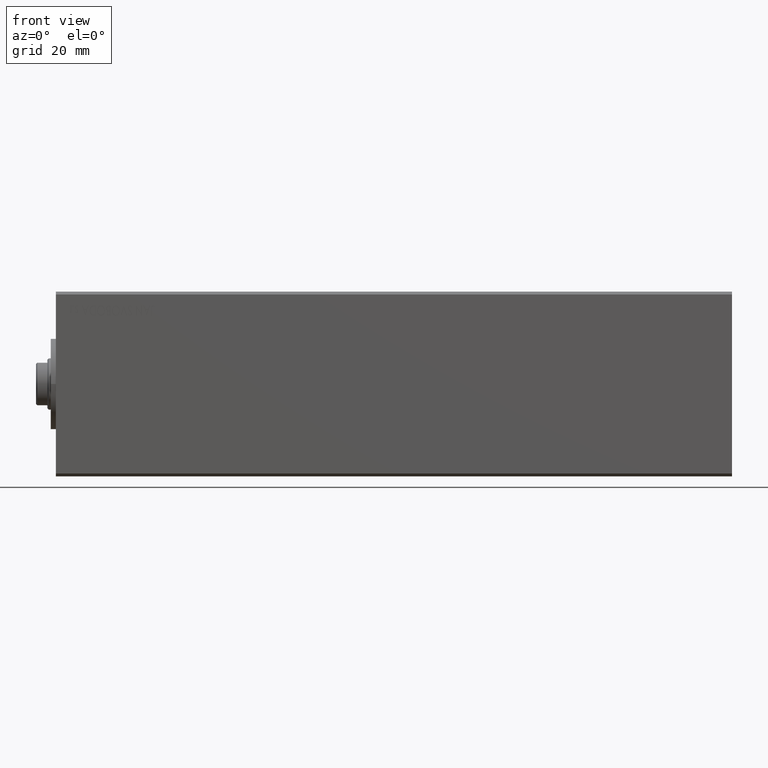
[diagram: clean part render]
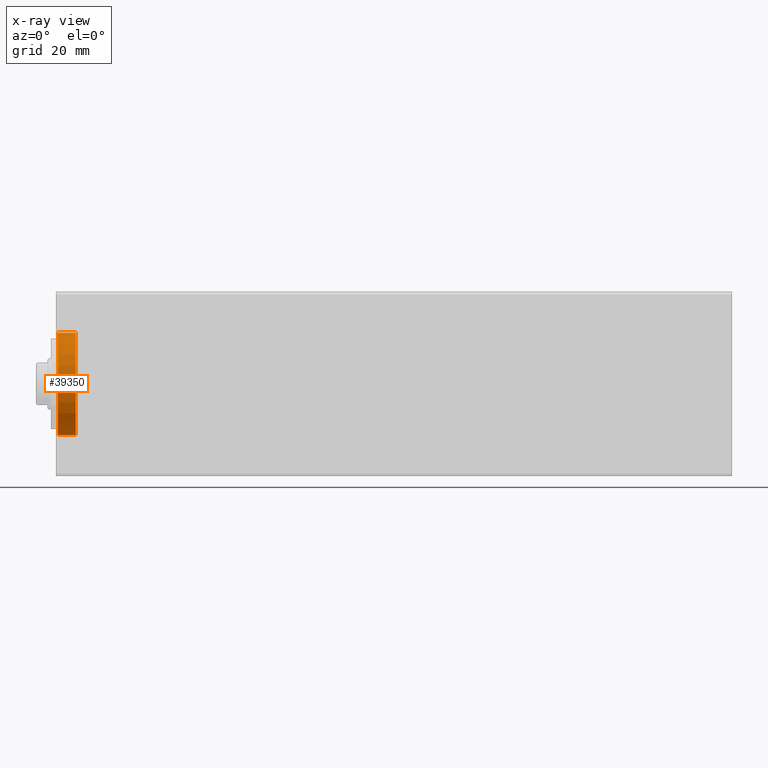
[diagram: x-ray — body ghosted, one internal face saturated and labeled with its STEP entity id]
A machine part, front view, then the same camera in x-ray: the body is ghosted and one INTERNAL B-rep face — a face not visible from any outside direction — is saturated and labeled: STEP entity #39350.
In plain terms, the highlighted cylindrical surface (partial cylindrical patch) has radius 18 mm, axis along (-1, -0, -0).
Its self-contained STEP definition (entity closure, byte-faithful):
#2317 = DIRECTION ( 'NONE',  ( 0.000000000000000000, 0.000000000000000000, 1.000000000000000000 ) ) ;
#2798 = CYLINDRICAL_SURFACE ( 'NONE', #19197, 18.00000000000000000 ) ;
#5882 = ORIENTED_EDGE ( 'NONE', *, *, #12369, .F. ) ;
#6034 = CARTESIAN_POINT ( 'NONE',  ( 7.000000000000000000, 0.000000000000000000, 18.00000000000000000 ) ) ;
#6366 = DIRECTION ( 'NONE',  ( -1.000000000000000000, -0.000000000000000000, -0.000000000000000000 ) ) ;
#7987 = CARTESIAN_POINT ( 'NONE',  ( 0.7000000000000027311, 0.000000000000000000, 0.000000000000000000 ) ) ;
#9367 = VERTEX_POINT ( 'NONE', #28168 ) ;
#9522 = AXIS2_PLACEMENT_3D ( 'NONE', #19054, #32680, #2317 ) ;
#9584 = VERTEX_POINT ( 'NONE', #20310 ) ;
#9669 = EDGE_CURVE ( 'NONE', #9584, #9367, #19443, .T. ) ;
#10104 = EDGE_CURVE ( 'NONE', #9367, #29699, #13451, .T. ) ;
#10353 = FACE_OUTER_BOUND ( 'NONE', #41448, .T. ) ;
#12369 = EDGE_CURVE ( 'NONE', #37796, #29699, #43968, .T. ) ;
#12725 = CARTESIAN_POINT ( 'NONE',  ( 7.000000000000000000, 2.204364238465235428E-15, -18.00000000000000000 ) ) ;
#13451 = CIRCLE ( 'NONE', #37015, 18.00000000000000000 ) ;
#14962 = VECTOR ( 'NONE', #43534, 1000.000000000000000 ) ;
#19054 = CARTESIAN_POINT ( 'NONE',  ( 7.000000000000000000, 0.000000000000000000, 0.000000000000000000 ) ) ;
#19197 = AXIS2_PLACEMENT_3D ( 'NONE', #27099, #6366, #40932 ) ;
#19443 = LINE ( 'NONE', #12725, #37713 ) ;
#19892 = EDGE_CURVE ( 'NONE', #9584, #37796, #33072, .T. ) ;
#20310 = CARTESIAN_POINT ( 'NONE',  ( 7.000000000000000000, 2.204364238465235428E-15, -18.00000000000000000 ) ) ;
#27099 = CARTESIAN_POINT ( 'NONE',  ( 7.000000000000000000, 0.000000000000000000, 0.000000000000000000 ) ) ;
#28168 = CARTESIAN_POINT ( 'NONE',  ( 0.7000000000000027311, 2.204364238465235428E-15, -18.00000000000000000 ) ) ;
#28946 = DIRECTION ( 'NONE',  ( -1.000000000000000000, 0.000000000000000000, 0.000000000000000000 ) ) ;
#29699 = VERTEX_POINT ( 'NONE', #36759 ) ;
#32680 = DIRECTION ( 'NONE',  ( -1.000000000000000000, 0.000000000000000000, 0.000000000000000000 ) ) ;
#32835 = ORIENTED_EDGE ( 'NONE', *, *, #10104, .T. ) ;
#33072 = CIRCLE ( 'NONE', #9522, 18.00000000000000000 ) ;
#35202 = DIRECTION ( 'NONE',  ( 0.000000000000000000, 0.000000000000000000, -1.000000000000000000 ) ) ;
#35387 = ORIENTED_EDGE ( 'NONE', *, *, #19892, .F. ) ;
#35809 = ORIENTED_EDGE ( 'NONE', *, *, #9669, .T. ) ;
#36402 = CARTESIAN_POINT ( 'NONE',  ( 7.000000000000000000, 0.000000000000000000, 18.00000000000000000 ) ) ;
#36759 = CARTESIAN_POINT ( 'NONE',  ( 0.7000000000000027311, 0.000000000000000000, 18.00000000000000000 ) ) ;
#37015 = AXIS2_PLACEMENT_3D ( 'NONE', #7987, #28946, #35202 ) ;
#37274 = DIRECTION ( 'NONE',  ( -1.000000000000000000, -0.000000000000000000, -0.000000000000000000 ) ) ;
#37713 = VECTOR ( 'NONE', #37274, 1000.000000000000000 ) ;
#37796 = VERTEX_POINT ( 'NONE', #6034 ) ;
#39350 = ADVANCED_FACE ( 'NONE', ( #10353 ), #2798, .F. ) ;
#40932 = DIRECTION ( 'NONE',  ( 0.000000000000000000, 0.000000000000000000, 1.000000000000000000 ) ) ;
#41448 = EDGE_LOOP ( 'NONE', ( #35387, #35809, #32835, #5882 ) ) ;
#43534 = DIRECTION ( 'NONE',  ( -1.000000000000000000, -0.000000000000000000, -0.000000000000000000 ) ) ;
#43968 = LINE ( 'NONE', #36402, #14962 ) ;